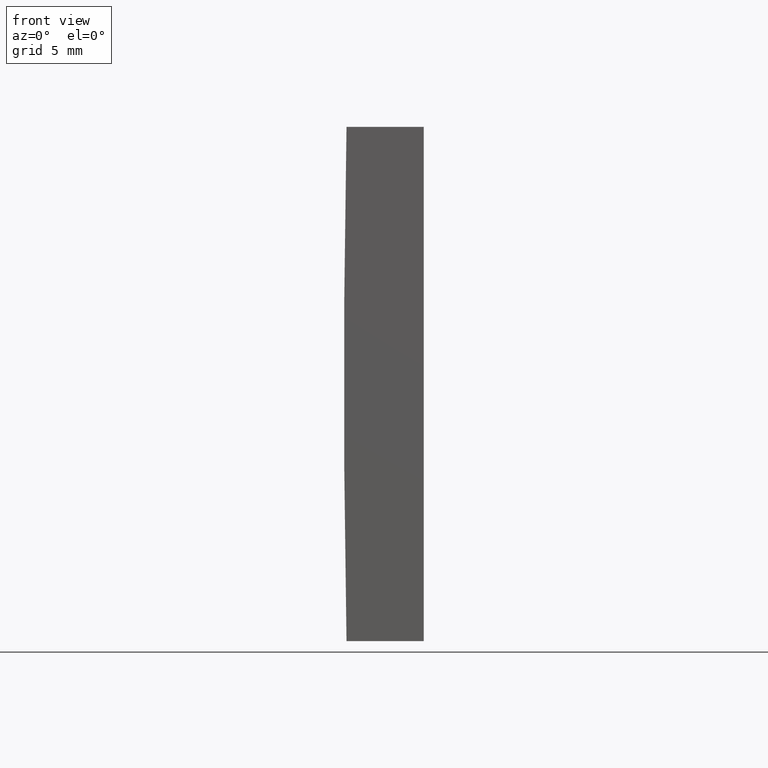
[diagram: clean part render]
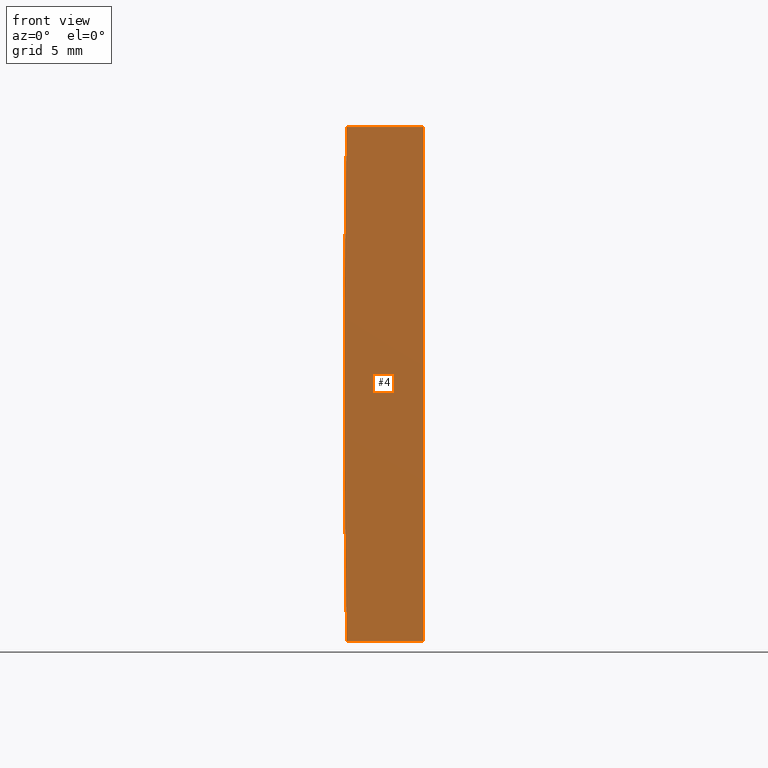
[diagram: same view with one face highlighted and labeled with its STEP entity id]
A machine part, front view. The second image highlights one B-rep face of the part: STEP entity #4.
In plain terms, the highlighted planar face has unit normal (0, 1, 0).
Its self-contained STEP definition (entity closure, byte-faithful):
#2 = EDGE_CURVE ( 'NONE', #50, #194, #87, .T. ) ;
#4 = ADVANCED_FACE ( 'NONE', ( #120 ), #67, .F. ) ;
#8 = LINE ( 'NONE', #178, #81 ) ;
#16 = ORIENTED_EDGE ( 'NONE', *, *, #2, .F. ) ;
#18 = ORIENTED_EDGE ( 'NONE', *, *, #157, .F. ) ;
#28 = DIRECTION ( 'NONE',  ( 0.0000000000000000000, 1.000000000000000000, 0.0000000000000000000 ) ) ;
#43 = ORIENTED_EDGE ( 'NONE', *, *, #55, .F. ) ;
#45 = CARTESIAN_POINT ( 'NONE',  ( -512.3480373813197300, 0.0000000000000000000, 10.00000000000000000 ) ) ;
#49 = CARTESIAN_POINT ( 'NONE',  ( -512.3480373813197300, 0.0000000000000000000, 10.00000000000000000 ) ) ;
#50 = VERTEX_POINT ( 'NONE', #64 ) ;
#55 = EDGE_CURVE ( 'NONE', #144, #180, #8, .T. ) ;
#63 = EDGE_CURVE ( 'NONE', #194, #144, #164, .T. ) ;
#64 = CARTESIAN_POINT ( 'NONE',  ( -512.3480373813197300, 0.0000000000000000000, -10.00000000000000000 ) ) ;
#67 = PLANE ( 'NONE',  #201 ) ;
#79 = DIRECTION ( 'NONE',  ( -0.0000000000000000000, -0.0000000000000000000, -1.000000000000000000 ) ) ;
#80 = CARTESIAN_POINT ( 'NONE',  ( 4.355204334851265500, 0.0000000000000000000, 4.286263797015675000E-017 ) ) ;
#81 = VECTOR ( 'NONE', #79, 1000.000000000000000 ) ;
#83 = DIRECTION ( 'NONE',  ( 0.0000000000000000000, 0.0000000000000000000, 1.000000000000000000 ) ) ;
#87 = CIRCLE ( 'NONE', #170, 516.7999999999998400 ) ;
#89 = CARTESIAN_POINT ( 'NONE',  ( -509.3447956651486900, 0.0000000000000000000, 10.00000000000000000 ) ) ;
#90 = CARTESIAN_POINT ( 'NONE',  ( -509.3447956651486900, 0.0000000000000000000, -10.00000000000000400 ) ) ;
#103 = CARTESIAN_POINT ( 'NONE',  ( 4.355204334851265500, 0.0000000000000000000, 4.286263797015675000E-017 ) ) ;
#119 = EDGE_LOOP ( 'NONE', ( #16, #18, #43, #167 ) ) ;
#120 = FACE_OUTER_BOUND ( 'NONE', #119, .T. ) ;
#123 = DIRECTION ( 'NONE',  ( 0.0000000000000000000, 1.000000000000000000, 0.0000000000000000000 ) ) ;
#144 = VERTEX_POINT ( 'NONE', #89 ) ;
#148 = VECTOR ( 'NONE', #185, 1000.000000000000000 ) ;
#153 = LINE ( 'NONE', #161, #148 ) ;
#157 = EDGE_CURVE ( 'NONE', #180, #50, #153, .T. ) ;
#161 = CARTESIAN_POINT ( 'NONE',  ( -512.3480373813197300, 0.0000000000000000000, -10.00000000000000000 ) ) ;
#164 = LINE ( 'NONE', #45, #188 ) ;
#167 = ORIENTED_EDGE ( 'NONE', *, *, #63, .F. ) ;
#170 = AXIS2_PLACEMENT_3D ( 'NONE', #103, #28, #83 ) ;
#177 = DIRECTION ( 'NONE',  ( 0.0000000000000000000, -0.0000000000000000000, 1.000000000000000000 ) ) ;
#178 = CARTESIAN_POINT ( 'NONE',  ( -509.3447956651486900, 0.0000000000000000000, -10.00000000000000400 ) ) ;
#180 = VERTEX_POINT ( 'NONE', #90 ) ;
#185 = DIRECTION ( 'NONE',  ( -1.000000000000000000, -0.0000000000000000000, 1.155234003734118200E-015 ) ) ;
#186 = DIRECTION ( 'NONE',  ( 1.000000000000000000, 0.0000000000000000000, 0.0000000000000000000 ) ) ;
#188 = VECTOR ( 'NONE', #186, 1000.000000000000000 ) ;
#194 = VERTEX_POINT ( 'NONE', #49 ) ;
#201 = AXIS2_PLACEMENT_3D ( 'NONE', #80, #123, #177 ) ;